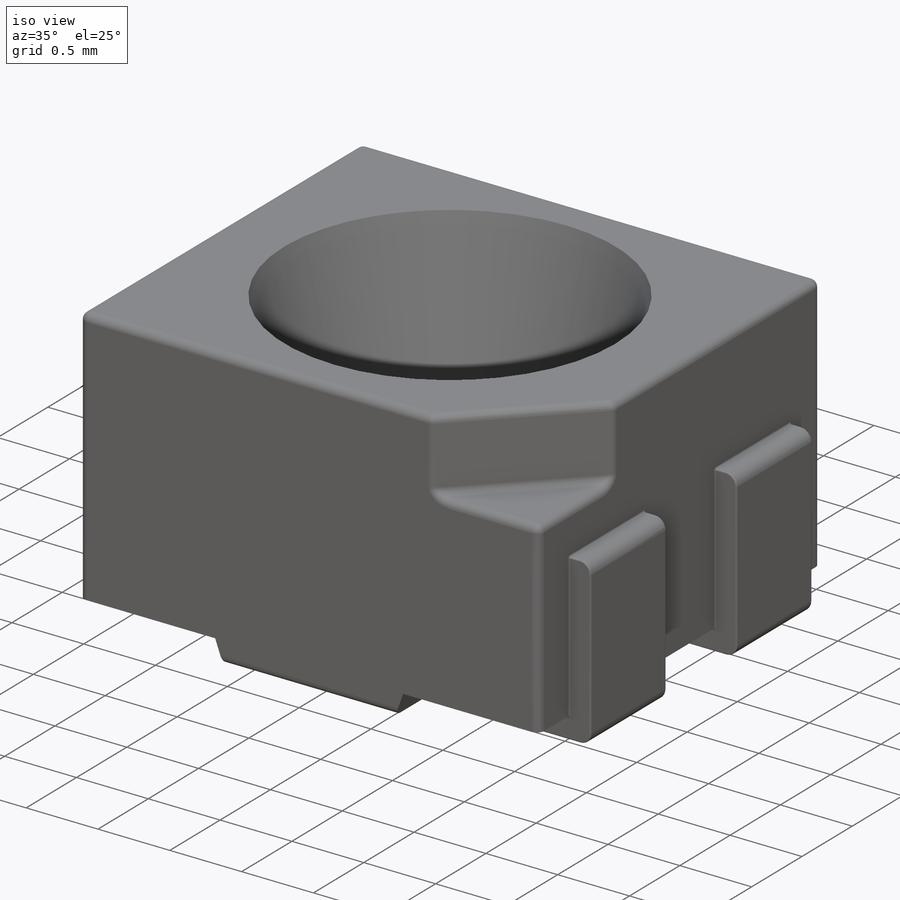
[diagram: iso view]
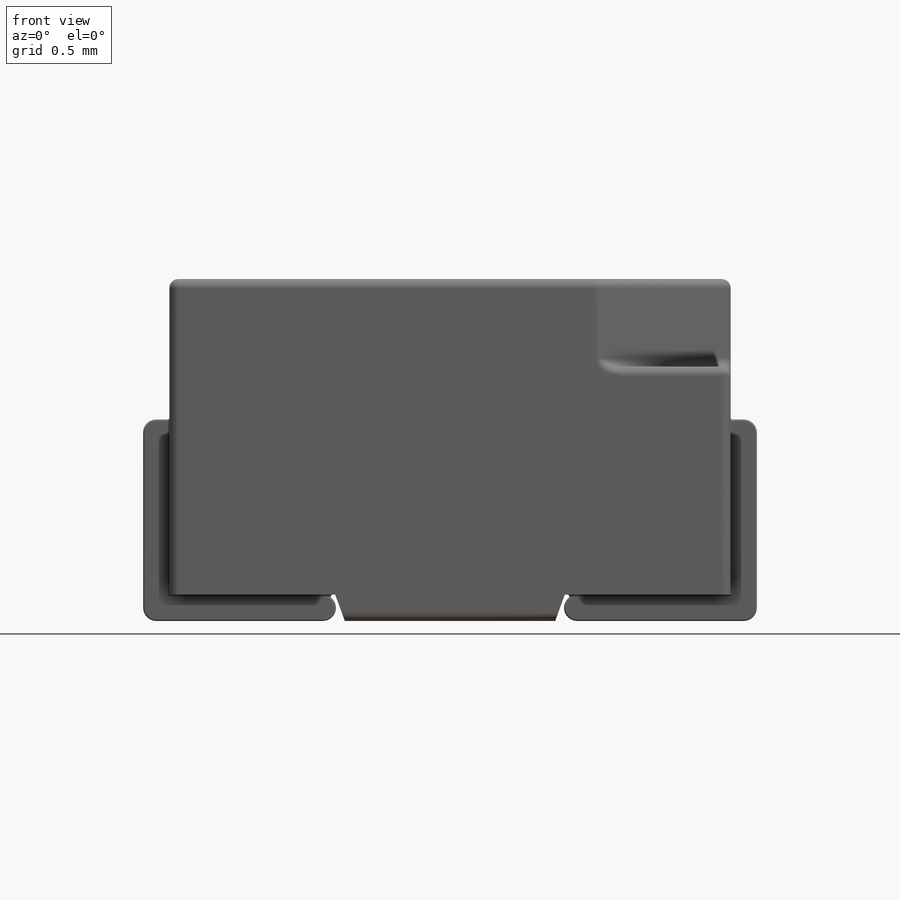
[diagram: front view]
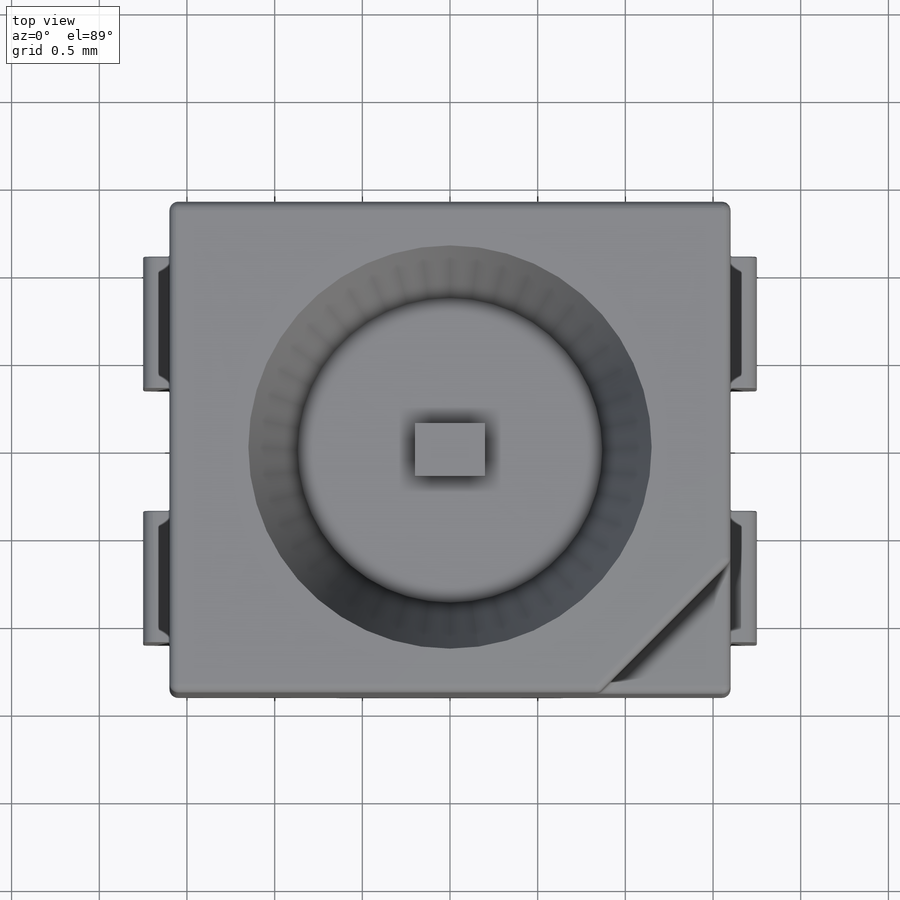
[diagram: top view]
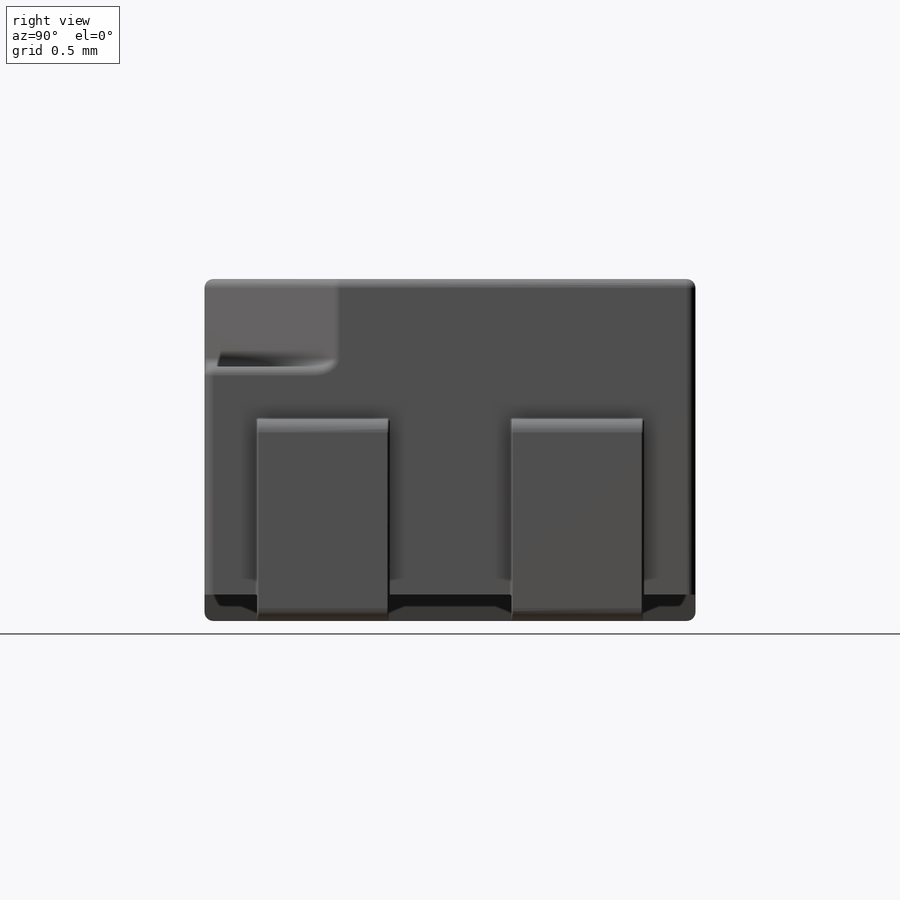
[diagram: right view]
SOLIDWORKS PART (.sldprt)
format: sldprt  version: not decoded by parser v0  size: 616,448 bytes
history: native  units: mm
features: sketch x6, plane x3, extrude x3, fillet x3, cut_extrude x3, mirror x2, material x1, chamfer x1 (+9 scaffold rows collapsed)
feature tree (31):
  scaffold x9  (default folders/planes/origin — collapsed)
  material  "Material <not specified>"
  plane  "Plan de face"
  plane  "Plan de dessus"
  plane  "Plan de droite"
  sketch  "Esquisse1"  dims[c1.D1=2.8mm c1.D2=3.2mm c2.D1=2.8mm c2.D2=3.2mm]
  extrude  "Corps"  Depth=1.95mm
  fillet  "Congé2"  Radius=0.05mm
  sketch  "Esquisse2"  dims[D1=2.3mm]
  cut_extrude  "Puit puce"  Depth=1.05mm
  sketch  "Esquisse8"  dims[D1=0.3mm D2=0.4mm]
  extrude  "Puce"  Depth=0.2mm
  sketch  "Esquisse4"  dims[D1=1.0mm]
  cut_extrude  "Lamage pins"  Depth=0.15mm
  sketch  "Esquisse9"  dims[c1.D7=0.075mm c1.D1=0.075mm c1.D2=0.95mm c1.D3=0.075mm c1.D4=1.0mm c1.D8=0.35mm c1.D9=0.075mm c1.D10=0.125mm c2.D9=0.075mm c2.D3=0.15mm c3.D9=0.85mm c3.D5=0.075mm c3.D6=0.075mm]
  extrude  "Pin1"  Depth=0.75mm
  fillet  "Congé1"  Radius=0.01mm
  mirror  "Pin2"
  mirror  "Pin3 et Pin4"
  chamfer  "Chanfrein de lamage pins"  Distance=0.15mm Angle=20deg
  sketch  "Esquisse5"  dims[D1=0.75mm]
  cut_extrude  "Detrompage"  Depth=0.5mm
  fillet  "Congé3"  Radius=0.05mm
decode coverage: 16 of 18 modeling features carry decoded parameters
note: suppression state not decoded; provenance and decode notes live in map.json
